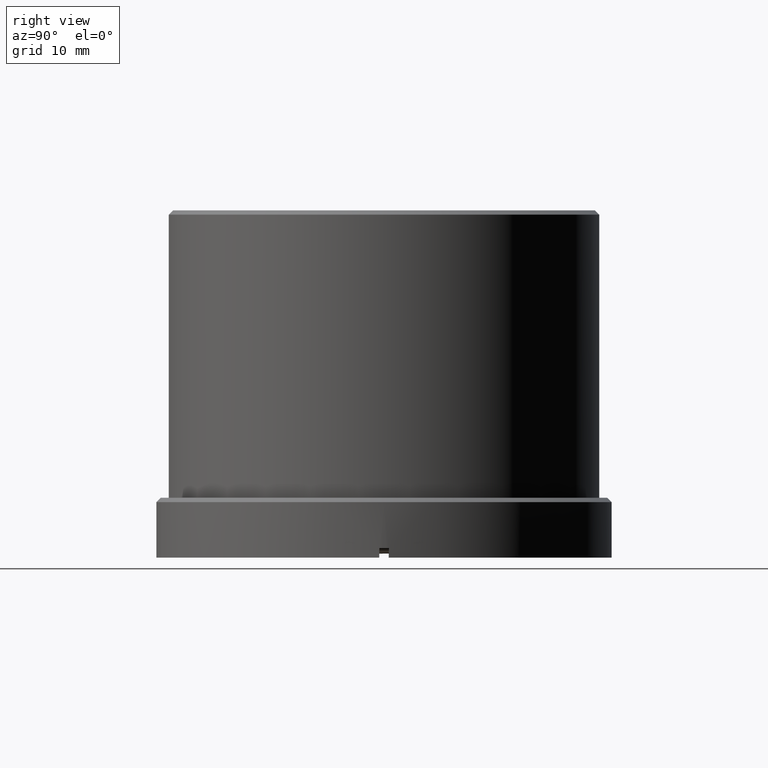
[diagram: clean part render]
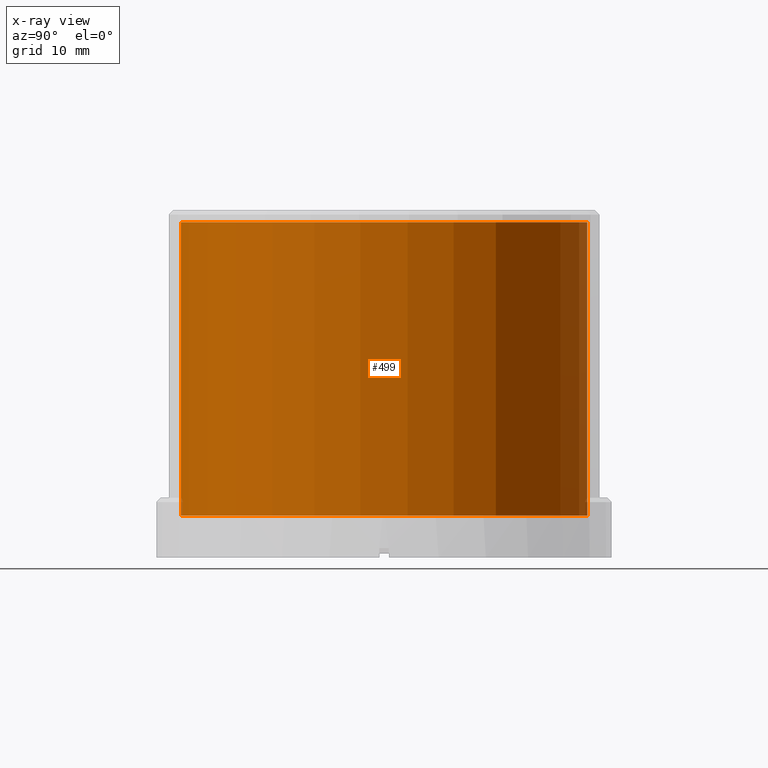
[diagram: x-ray — body ghosted, one internal face saturated and labeled with its STEP entity id]
A machine part, right view, then the same camera in x-ray: the body is ghosted and one INTERNAL B-rep face — a face not visible from any outside direction — is saturated and labeled: STEP entity #499.
In plain terms, the highlighted cylindrical surface (bore or boss wall) has radius 17 mm, axis along (-0, -0, -1).
Its self-contained STEP definition (entity closure, byte-faithful):
#8 = CARTESIAN_POINT ( 'NONE',  ( -16.99999999999998579, 0.000000000000000000, 238.6772689990073673 ) ) ;
#125 = EDGE_CURVE ( 'NONE', #218, #218, #813, .T. ) ;
#129 = DIRECTION ( 'NONE',  ( -1.000000000000000000, 0.000000000000000000, 0.000000000000000000 ) ) ;
#218 = VERTEX_POINT ( 'NONE', #8 ) ;
#499 = ADVANCED_FACE ( 'NONE', ( #967, #2268 ), #2239, .F. ) ;
#540 = VERTEX_POINT ( 'NONE', #2400 ) ;
#581 = EDGE_LOOP ( 'NONE', ( #606 ) ) ;
#606 = ORIENTED_EDGE ( 'NONE', *, *, #125, .F. ) ;
#633 = EDGE_CURVE ( 'NONE', #540, #540, #2160, .T. ) ;
#762 = DIRECTION ( 'NONE',  ( 0.000000000000000000, 0.000000000000000000, 1.000000000000000000 ) ) ;
#813 = CIRCLE ( 'NONE', #2205, 16.99999999999998579 ) ;
#951 = CARTESIAN_POINT ( 'NONE',  ( 0.000000000000000000, 0.000000000000000000, 214.1772689990073673 ) ) ;
#967 = FACE_OUTER_BOUND ( 'NONE', #2565, .T. ) ;
#977 = CARTESIAN_POINT ( 'NONE',  ( 0.000000000000000000, 0.000000000000000000, 238.6772689990073673 ) ) ;
#1238 = ORIENTED_EDGE ( 'NONE', *, *, #633, .F. ) ;
#1350 = AXIS2_PLACEMENT_3D ( 'NONE', #1813, #1392, #2477 ) ;
#1392 = DIRECTION ( 'NONE',  ( -0.000000000000000000, -0.000000000000000000, -1.000000000000000000 ) ) ;
#1663 = AXIS2_PLACEMENT_3D ( 'NONE', #951, #762, #129 ) ;
#1813 = CARTESIAN_POINT ( 'NONE',  ( 0.000000000000000000, 0.000000000000000000, 171.6984302906483038 ) ) ;
#2160 = CIRCLE ( 'NONE', #1663, 16.99999999999998579 ) ;
#2205 = AXIS2_PLACEMENT_3D ( 'NONE', #977, #2686, #2206 ) ;
#2206 = DIRECTION ( 'NONE',  ( -1.000000000000000000, 0.000000000000000000, 0.000000000000000000 ) ) ;
#2239 = CYLINDRICAL_SURFACE ( 'NONE', #1350, 16.99999999999998579 ) ;
#2268 = FACE_OUTER_BOUND ( 'NONE', #581, .T. ) ;
#2400 = CARTESIAN_POINT ( 'NONE',  ( -16.99999999999998579, 0.000000000000000000, 214.1772689990073673 ) ) ;
#2477 = DIRECTION ( 'NONE',  ( -1.000000000000000000, 0.000000000000000000, 0.000000000000000000 ) ) ;
#2565 = EDGE_LOOP ( 'NONE', ( #1238 ) ) ;
#2686 = DIRECTION ( 'NONE',  ( -0.000000000000000000, -0.000000000000000000, -1.000000000000000000 ) ) ;